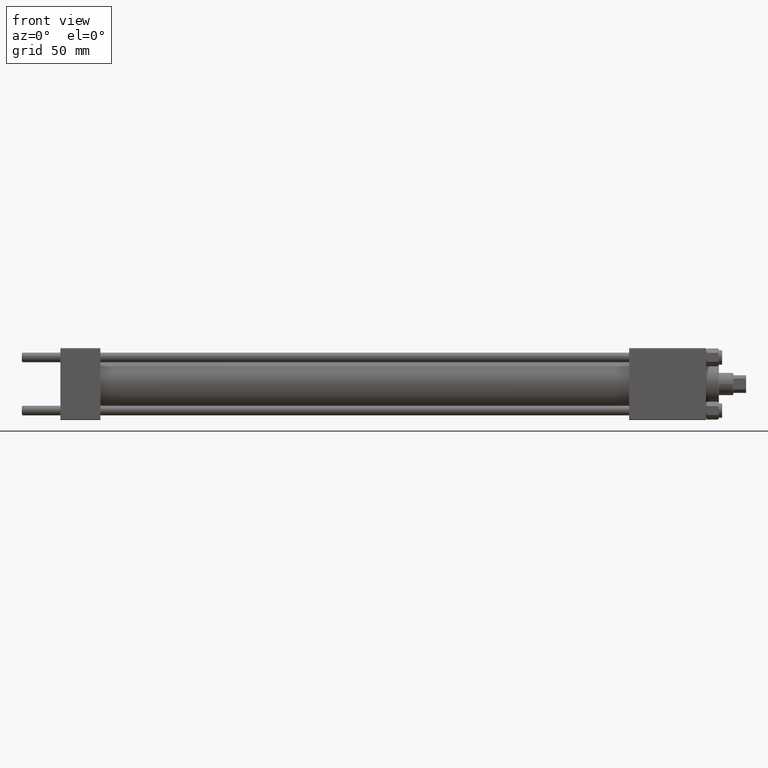
[diagram: clean part render]
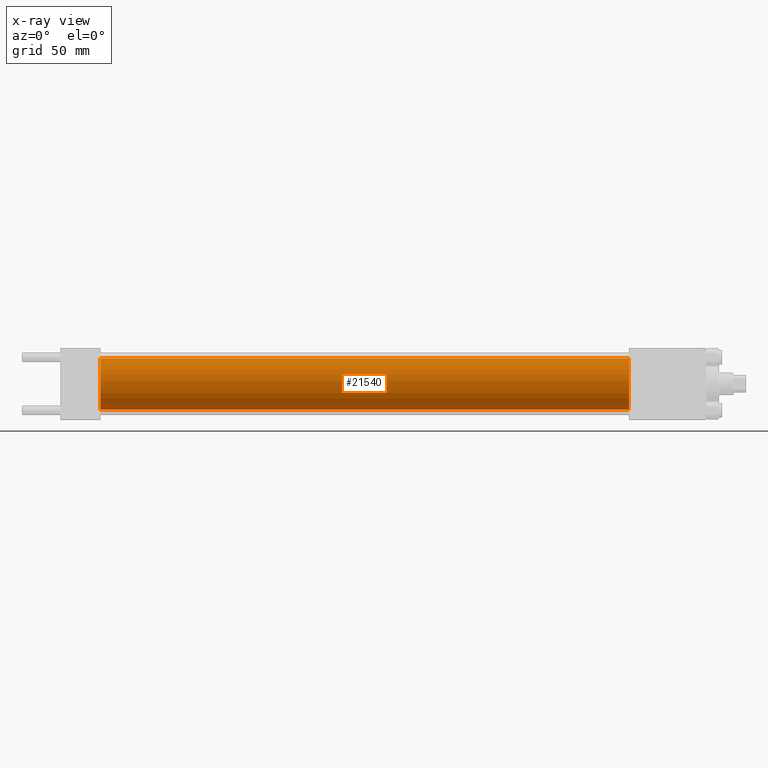
[diagram: x-ray — body ghosted, one internal face saturated and labeled with its STEP entity id]
A machine part, front view, then the same camera in x-ray: the body is ghosted and one INTERNAL B-rep face — a face not visible from any outside direction — is saturated and labeled: STEP entity #21540.
In plain terms, the highlighted cylindrical surface (edge-blend (fillet) strip) has radius 16 mm, axis along (-1, -0, -0).
Its self-contained STEP definition (entity closure, byte-faithful):
#858 = CARTESIAN_POINT ( 'NONE',  ( 355.0000000000000568, 0.000000000000000000, 16.00000000000000000 ) ) ;
#1463 = DIRECTION ( 'NONE',  ( 0.000000000000000000, 0.000000000000000000, 1.000000000000000000 ) ) ;
#2557 = EDGE_CURVE ( 'NONE', #36203, #10092, #25436, .T. ) ;
#2623 = VERTEX_POINT ( 'NONE', #23141 ) ;
#6475 = EDGE_CURVE ( 'NONE', #2623, #10092, #8495, .T. ) ;
#7286 = LINE ( 'NONE', #10832, #19830 ) ;
#8495 = CIRCLE ( 'NONE', #14963, 16.00000000000000000 ) ;
#10037 = CARTESIAN_POINT ( 'NONE',  ( 355.0000000000000568, 1.959434878635765131E-15, -16.00000000000000000 ) ) ;
#10092 = VERTEX_POINT ( 'NONE', #48836 ) ;
#10750 = ORIENTED_EDGE ( 'NONE', *, *, #6475, .F. ) ;
#10832 = CARTESIAN_POINT ( 'NONE',  ( 355.0000000000000568, 0.000000000000000000, 16.00000000000000000 ) ) ;
#10853 = CARTESIAN_POINT ( 'NONE',  ( 355.0000000000000568, 0.000000000000000000, 0.000000000000000000 ) ) ;
#11509 = DIRECTION ( 'NONE',  ( 0.000000000000000000, 0.000000000000000000, -1.000000000000000000 ) ) ;
#14963 = AXIS2_PLACEMENT_3D ( 'NONE', #35175, #34923, #19812 ) ;
#17630 = DIRECTION ( 'NONE',  ( -1.000000000000000000, -0.000000000000000000, -0.000000000000000000 ) ) ;
#17995 = AXIS2_PLACEMENT_3D ( 'NONE', #10853, #46876, #1463 ) ;
#19812 = DIRECTION ( 'NONE',  ( 0.000000000000000000, 0.000000000000000000, -1.000000000000000000 ) ) ;
#19830 = VECTOR ( 'NONE', #26715, 1000.000000000000000 ) ;
#19852 = CARTESIAN_POINT ( 'NONE',  ( 355.0000000000000568, 0.000000000000000000, 0.000000000000000000 ) ) ;
#21540 = ADVANCED_FACE ( 'NONE', ( #27240 ), #35043, .F. ) ;
#23141 = CARTESIAN_POINT ( 'NONE',  ( 25.00000000000000000, 0.000000000000000000, 16.00000000000000000 ) ) ;
#23791 = CIRCLE ( 'NONE', #31029, 16.00000000000000000 ) ;
#25436 = LINE ( 'NONE', #10037, #39840 ) ;
#26425 = EDGE_CURVE ( 'NONE', #46811, #36203, #23791, .T. ) ;
#26715 = DIRECTION ( 'NONE',  ( -1.000000000000000000, -0.000000000000000000, -0.000000000000000000 ) ) ;
#27235 = ORIENTED_EDGE ( 'NONE', *, *, #32817, .F. ) ;
#27240 = FACE_OUTER_BOUND ( 'NONE', #48842, .T. ) ;
#30694 = DIRECTION ( 'NONE',  ( 1.000000000000000000, 0.000000000000000000, 0.000000000000000000 ) ) ;
#31029 = AXIS2_PLACEMENT_3D ( 'NONE', #19852, #30694, #11509 ) ;
#32664 = ORIENTED_EDGE ( 'NONE', *, *, #26425, .T. ) ;
#32817 = EDGE_CURVE ( 'NONE', #46811, #2623, #7286, .T. ) ;
#34923 = DIRECTION ( 'NONE',  ( 1.000000000000000000, 0.000000000000000000, 0.000000000000000000 ) ) ;
#35043 = CYLINDRICAL_SURFACE ( 'NONE', #17995, 16.00000000000000000 ) ;
#35082 = ORIENTED_EDGE ( 'NONE', *, *, #2557, .T. ) ;
#35175 = CARTESIAN_POINT ( 'NONE',  ( 25.00000000000000000, 0.000000000000000000, 0.000000000000000000 ) ) ;
#36203 = VERTEX_POINT ( 'NONE', #39530 ) ;
#39530 = CARTESIAN_POINT ( 'NONE',  ( 355.0000000000000568, 1.959434878635765131E-15, -16.00000000000000000 ) ) ;
#39840 = VECTOR ( 'NONE', #17630, 1000.000000000000000 ) ;
#46811 = VERTEX_POINT ( 'NONE', #858 ) ;
#46876 = DIRECTION ( 'NONE',  ( -1.000000000000000000, -0.000000000000000000, -0.000000000000000000 ) ) ;
#48836 = CARTESIAN_POINT ( 'NONE',  ( 25.00000000000000000, 1.959434878635765131E-15, -16.00000000000000000 ) ) ;
#48842 = EDGE_LOOP ( 'NONE', ( #32664, #35082, #10750, #27235 ) ) ;